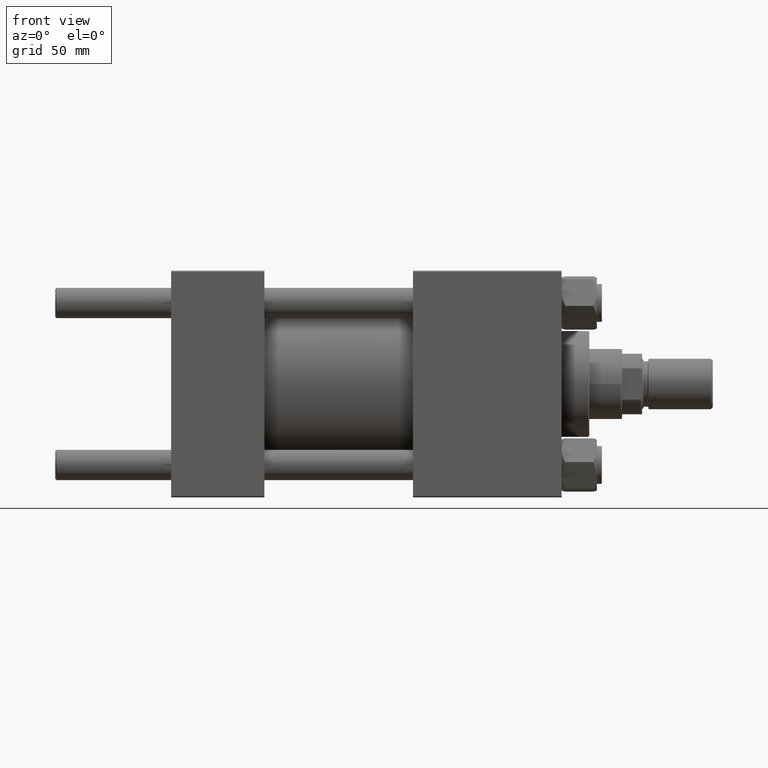
[diagram: clean part render]
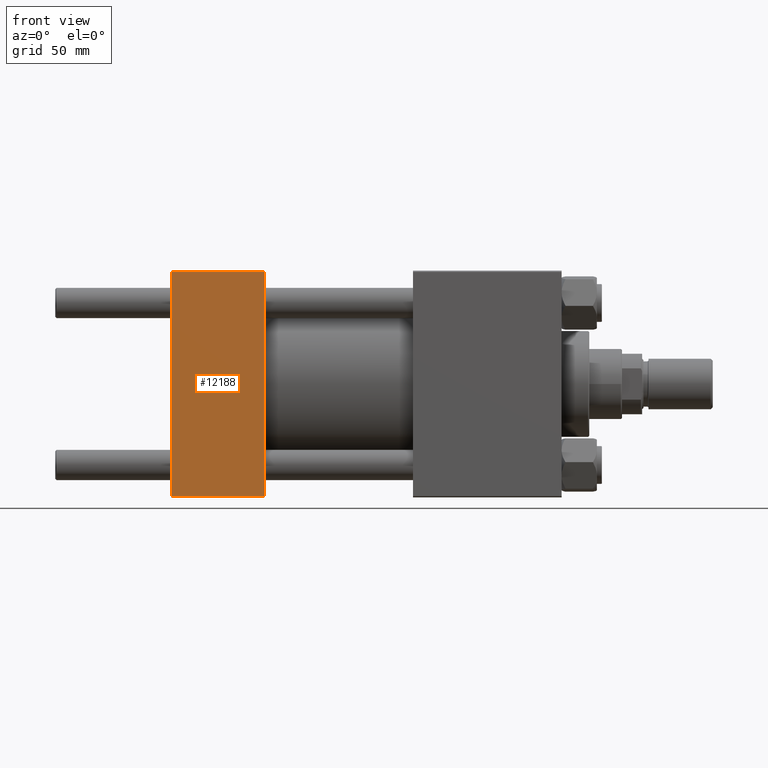
[diagram: same view with one face highlighted and labeled with its STEP entity id]
A machine part, front view. The second image highlights one B-rep face of the part: STEP entity #12188.
In plain terms, the highlighted planar face has unit normal (0, 1, 0).
Its self-contained STEP definition (entity closure, byte-faithful):
#735 = LINE ( 'NONE', #31093, #37228 ) ;
#4127 = EDGE_CURVE ( 'NONE', #44742, #8898, #735, .T. ) ;
#5285 = FACE_OUTER_BOUND ( 'NONE', #30838, .T. ) ;
#6029 = DIRECTION ( 'NONE',  ( -1.000000000000000000, 0.000000000000000000, 0.000000000000000000 ) ) ;
#8898 = VERTEX_POINT ( 'NONE', #17066 ) ;
#9292 = VERTEX_POINT ( 'NONE', #17010 ) ;
#9617 = CARTESIAN_POINT ( 'NONE',  ( 37.00000000000000000, -45.00000000000000711, 44.49999999999997158 ) ) ;
#11189 = EDGE_CURVE ( 'NONE', #33193, #9292, #32325, .T. ) ;
#12188 = ADVANCED_FACE ( 'NONE', ( #5285 ), #21603, .F. ) ;
#13316 = CARTESIAN_POINT ( 'NONE',  ( 0.000000000000000000, -45.00000000000000711, 45.00000000000000000 ) ) ;
#17010 = CARTESIAN_POINT ( 'NONE',  ( 0.000000000000000000, -45.00000000000000711, 44.49999999999997158 ) ) ;
#17066 = CARTESIAN_POINT ( 'NONE',  ( 37.00000000000000000, -45.00000000000000000, -44.49999999999995737 ) ) ;
#19250 = LINE ( 'NONE', #41948, #44915 ) ;
#20482 = LINE ( 'NONE', #13316, #32199 ) ;
#20724 = EDGE_CURVE ( 'NONE', #9292, #44742, #20482, .T. ) ;
#21603 = PLANE ( 'NONE',  #22966 ) ;
#22966 = AXIS2_PLACEMENT_3D ( 'NONE', #47859, #32833, #29265 ) ;
#23699 = CARTESIAN_POINT ( 'NONE',  ( 0.000000000000000000, -45.00000000000000000, -44.49999999999995737 ) ) ;
#25878 = ORIENTED_EDGE ( 'NONE', *, *, #4127, .T. ) ;
#29265 = DIRECTION ( 'NONE',  ( 0.000000000000000000, -7.709882115452478166E-17, 1.000000000000000000 ) ) ;
#30838 = EDGE_LOOP ( 'NONE', ( #35881, #25878, #31552, #47872 ) ) ;
#31093 = CARTESIAN_POINT ( 'NONE',  ( 37.00000000000000000, -45.00000000000000000, -44.49999999999998579 ) ) ;
#31192 = VECTOR ( 'NONE', #6029, 1000.000000000000000 ) ;
#31552 = ORIENTED_EDGE ( 'NONE', *, *, #38528, .F. ) ;
#32062 = CARTESIAN_POINT ( 'NONE',  ( 37.00000000000000000, -45.00000000000000711, 44.49999999999997158 ) ) ;
#32199 = VECTOR ( 'NONE', #48487, 1000.000000000000000 ) ;
#32325 = LINE ( 'NONE', #9617, #31192 ) ;
#32833 = DIRECTION ( 'NONE',  ( -0.000000000000000000, 1.000000000000000000, 7.709882115452478166E-17 ) ) ;
#33193 = VERTEX_POINT ( 'NONE', #32062 ) ;
#35881 = ORIENTED_EDGE ( 'NONE', *, *, #20724, .T. ) ;
#37228 = VECTOR ( 'NONE', #47618, 1000.000000000000000 ) ;
#38384 = DIRECTION ( 'NONE',  ( 0.000000000000000000, 7.709882115452476934E-17, -1.000000000000000000 ) ) ;
#38528 = EDGE_CURVE ( 'NONE', #33193, #8898, #19250, .T. ) ;
#41948 = CARTESIAN_POINT ( 'NONE',  ( 37.00000000000000000, -45.00000000000000711, 45.00000000000000000 ) ) ;
#44742 = VERTEX_POINT ( 'NONE', #23699 ) ;
#44915 = VECTOR ( 'NONE', #38384, 1000.000000000000000 ) ;
#47618 = DIRECTION ( 'NONE',  ( 1.000000000000000000, 0.000000000000000000, 0.000000000000000000 ) ) ;
#47859 = CARTESIAN_POINT ( 'NONE',  ( 37.00000000000000000, -45.00000000000000711, 45.00000000000000000 ) ) ;
#47872 = ORIENTED_EDGE ( 'NONE', *, *, #11189, .T. ) ;
#48487 = DIRECTION ( 'NONE',  ( 0.000000000000000000, 7.709882115452476934E-17, -1.000000000000000000 ) ) ;